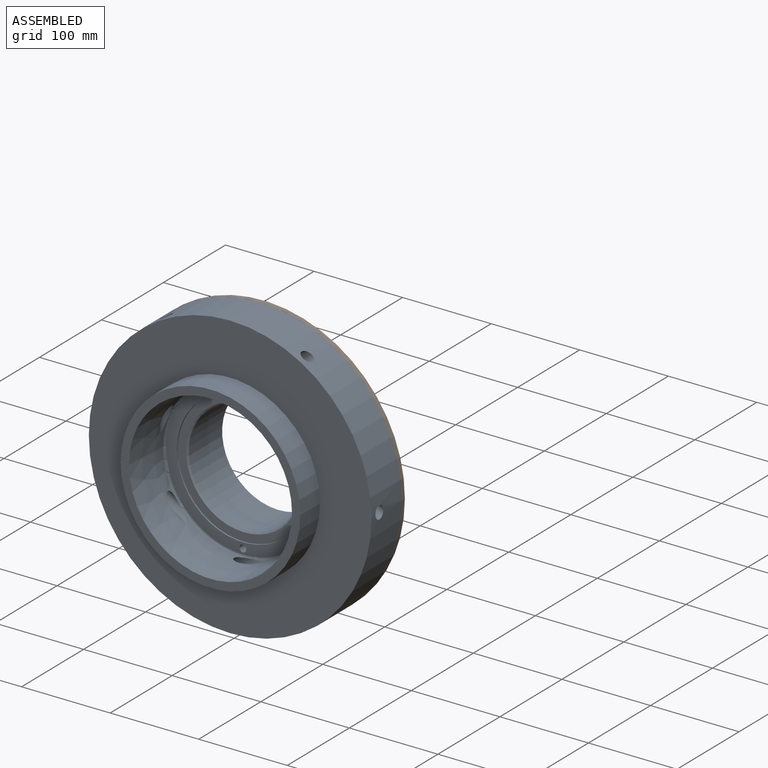
[diagram: assembled view]
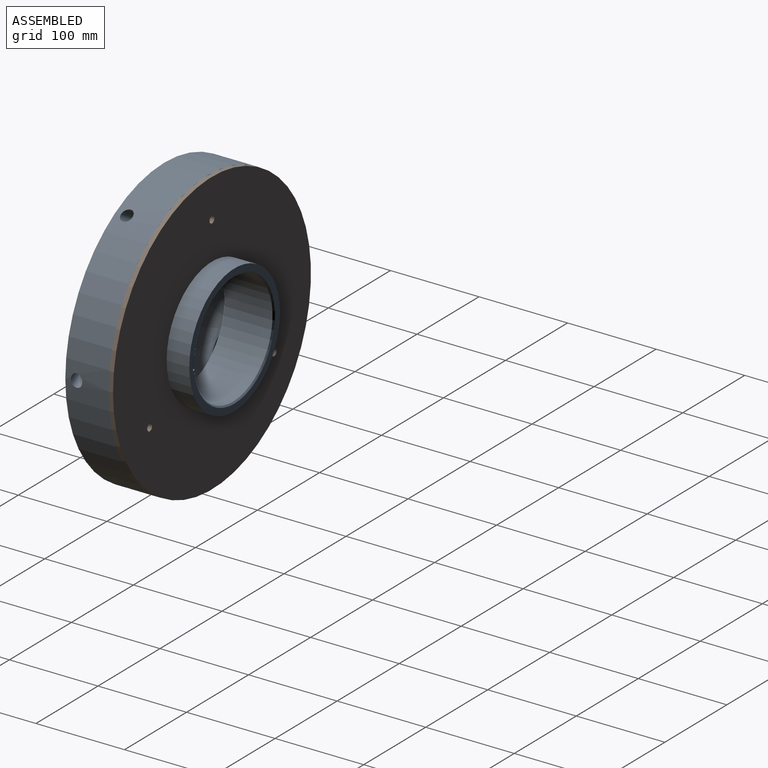
[diagram: assembled view, second angle]
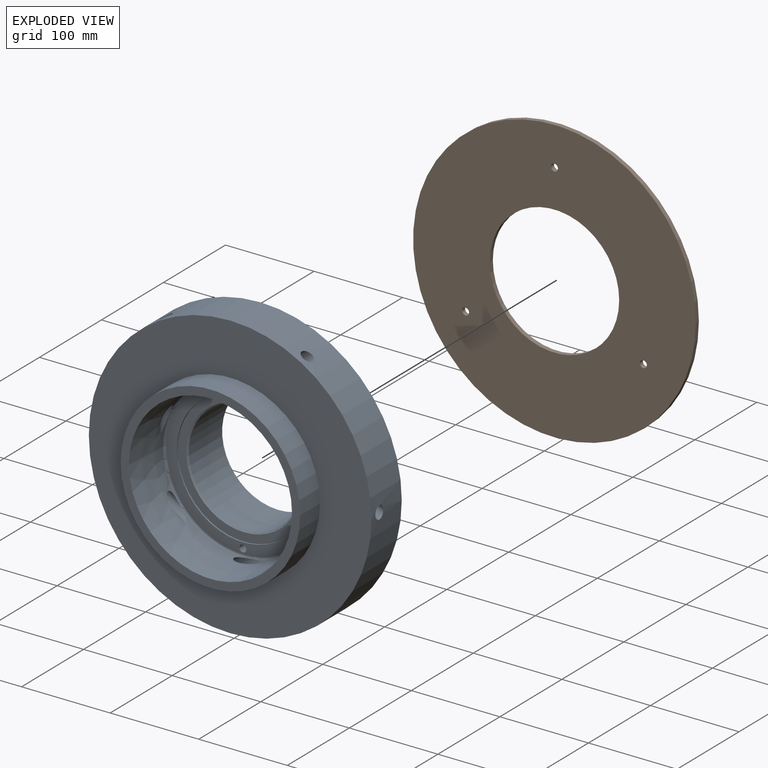
[diagram: exploded view]
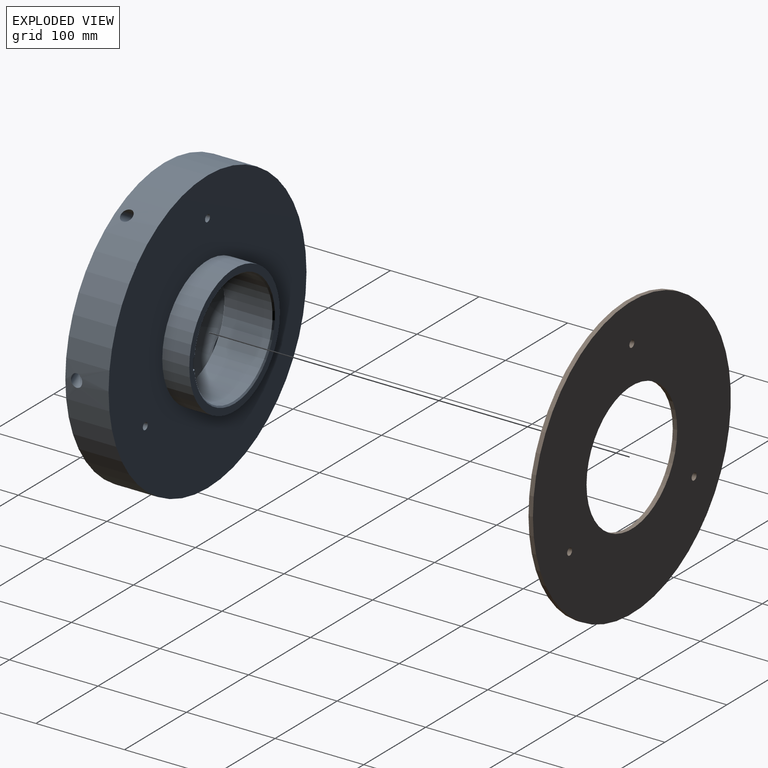
[diagram: exploded view, second angle]
ASSEMBLY  parts=2 mates=2
PART A: 35 faces, bbox 331.6x111.1x319.1 mm
  f0: plane 146.02x146.02mm, normal (0,1,0), area 3415.1mm2, adj f1,f14,f26,f27,f28
  f1: cone r=63.5mm half-angle=45deg, axis (0,1,0), area 878.4mm2, adj f0,f15,f27,f28
  f2: cone r=65.09mm half-angle=45deg, axis (0,-1,0), area 878.4mm2, adj f3,f15,f27,f28
  f3: plane 149.23x149.23mm, normal (0,-1,0), area 4157.2mm2, adj f2,f4,f26,f27,f28
  f4: cylinder r=74.61mm len=149.23mm, axis (0,1,0), area 774mm2, adj f3,f5
  f5: plane 173.23x173.23mm, normal (0,-1,0), area 5979.9mm2, adj f4,f6,f23,f25
  f6: torus R=86.61mm, axis (0,1,0), area 1940.7mm2, adj f5,f7,f16,f17,f18,f19,f20,f21
  f7: cylinder r=88.9mm len=177.8mm, axis (0,1,0), area 5740mm2, adj f6,f8,f16,f17,f18,f19,f20,f21
  f8: cone r=92.08mm half-angle=5deg, axis (0,-1,0), area 20711.7mm2, adj f7,f9
  f9: plane 202.84x202.84mm, normal (0,-1,0), area 5682.1mm2, adj f8,f10
  f10: cylinder r=101.42mm len=202.84mm, axis (0,1,0), area 20232.8mm2, adj f9,f11
  f11: plane 319.1x319.1mm, normal (0,-1,0), area 47657.2mm2, adj f10,f12
  f12: cylinder r=159.55mm len=319.1mm, axis (0,1,0), area 48078.3mm2, adj f11,f13,f16,f17,f18,f19,f20,f21
  f13: plane 319.1x319.1mm, normal (0,1,0), area 63077.5mm2, adj f12,f14,f29,f31,f33
  f14: cylinder r=73.01mm len=146.02mm, axis (0,1,0), area 14006mm2, adj f0,f13
  f15: cylinder r=63.5mm len=127mm, axis (0,1,0), area 20848.4mm2, adj f1,f2,f27,f28
  f16: cylinder r=6.35mm len=124.37mm, axis (0,0,1), area 4095.8mm2, adj f6,f7,f12
  f17: cylinder r=6.35mm len=114.06mm, axis (0.87,0,0.5), area 4095.8mm2, adj f6,f7,f12
  f18: cylinder r=6.35mm len=114.06mm, axis (0.87,0,-0.5), area 4095.8mm2, adj f6,f7,f12
  f19: cylinder r=6.35mm len=124.37mm, axis (0,0,-1), area 4096mm2, adj f6,f7,f12
  f20: cylinder r=6.35mm len=114.06mm, axis (-0.87,0,-0.5), area 4095.8mm2, adj f6,f7,f12
  f21: cylinder r=6.35mm len=114.06mm, axis (-0.87,0,0.5), area 4095.8mm2, adj f6,f7,f12
  f22: cone r=3.97mm half-angle=59deg, axis (0,-1,0), area 57.7mm2, adj f23
  f23: cylinder r=3.97mm len=16mm, axis (0,-1,0), area 399mm2, adj f5,f22
  f24: cone r=3.97mm half-angle=59deg, axis (0,-1,0), area 57.7mm2, adj f25
  f25: cylinder r=3.97mm len=16mm, axis (0,-1,0), area 399mm2, adj f5,f24
  f26: plane 57.15x12.7mm, normal (-1,0,0), area 725.8mm2, adj f0,f3,f27,f28
  f27: plane 57.15x3.62mm, normal (0,0,-1), area 204.4mm2, adj f0,f1,f2,f3,f15,f26
  f28: plane 57.15x3.62mm, normal (0,0,1), area 204.4mm2, adj f0,f1,f2,f3,f15,f26
  f29: cylinder r=3.97mm len=19.05mm, axis (0,1,0), area 475mm2, adj f13,f30
  f30: plane 7.94x7.94mm, normal (0,1,0), area 49.5mm2, adj f29
  f31: cylinder r=3.97mm len=19.05mm, axis (0,1,0), area 475mm2, adj f13,f32
  f32: plane 7.94x7.94mm, normal (0,1,0), area 49.5mm2, adj f31
  f33: cylinder r=3.97mm len=19.05mm, axis (0,1,0), area 475mm2, adj f13,f34
  f34: plane 7.94x7.94mm, normal (0,1,0), area 49.5mm2, adj f33
PART B: 7 faces, bbox 319.1x5x319.1 mm
  f0: plane 319.1x319.1mm, normal (0,-1,0), area 63042.5mm2, adj f2,f3,f4,f5,f6
  f1: plane 319.1x319.1mm, normal (0,1,0), area 63042.5mm2, adj f2,f3,f4,f5,f6
  f2: cylinder r=159.55mm len=319.1mm, axis (0,1,0), area 5012.4mm2, adj f0,f1
  f3: cylinder r=73.09mm len=146.18mm, axis (0,1,0), area 2296.1mm2, adj f0,f1
  f4: cylinder r=3.97mm len=7.94mm, axis (0,-1,0), area 124.7mm2, adj f0,f1
  f5: cylinder r=3.97mm len=7.94mm, axis (0,-1,0), area 124.7mm2, adj f0,f1
  f6: cylinder r=3.97mm len=7.94mm, axis (0,-1,0), area 124.7mm2, adj f0,f1
PLACE A t=(299.39,-81.8,149.35)mm
PLACE B t=(299.39,-51.77,149.35)mm
MATE planar B.f2 <-> A.f1  axis (0,-1,0) through (299.39,-56.77,149.35)mm
MATE cylindrical B.f6 <-> A.f33  axis (0,1,0) through (299.39,-51.77,265.23)mm
